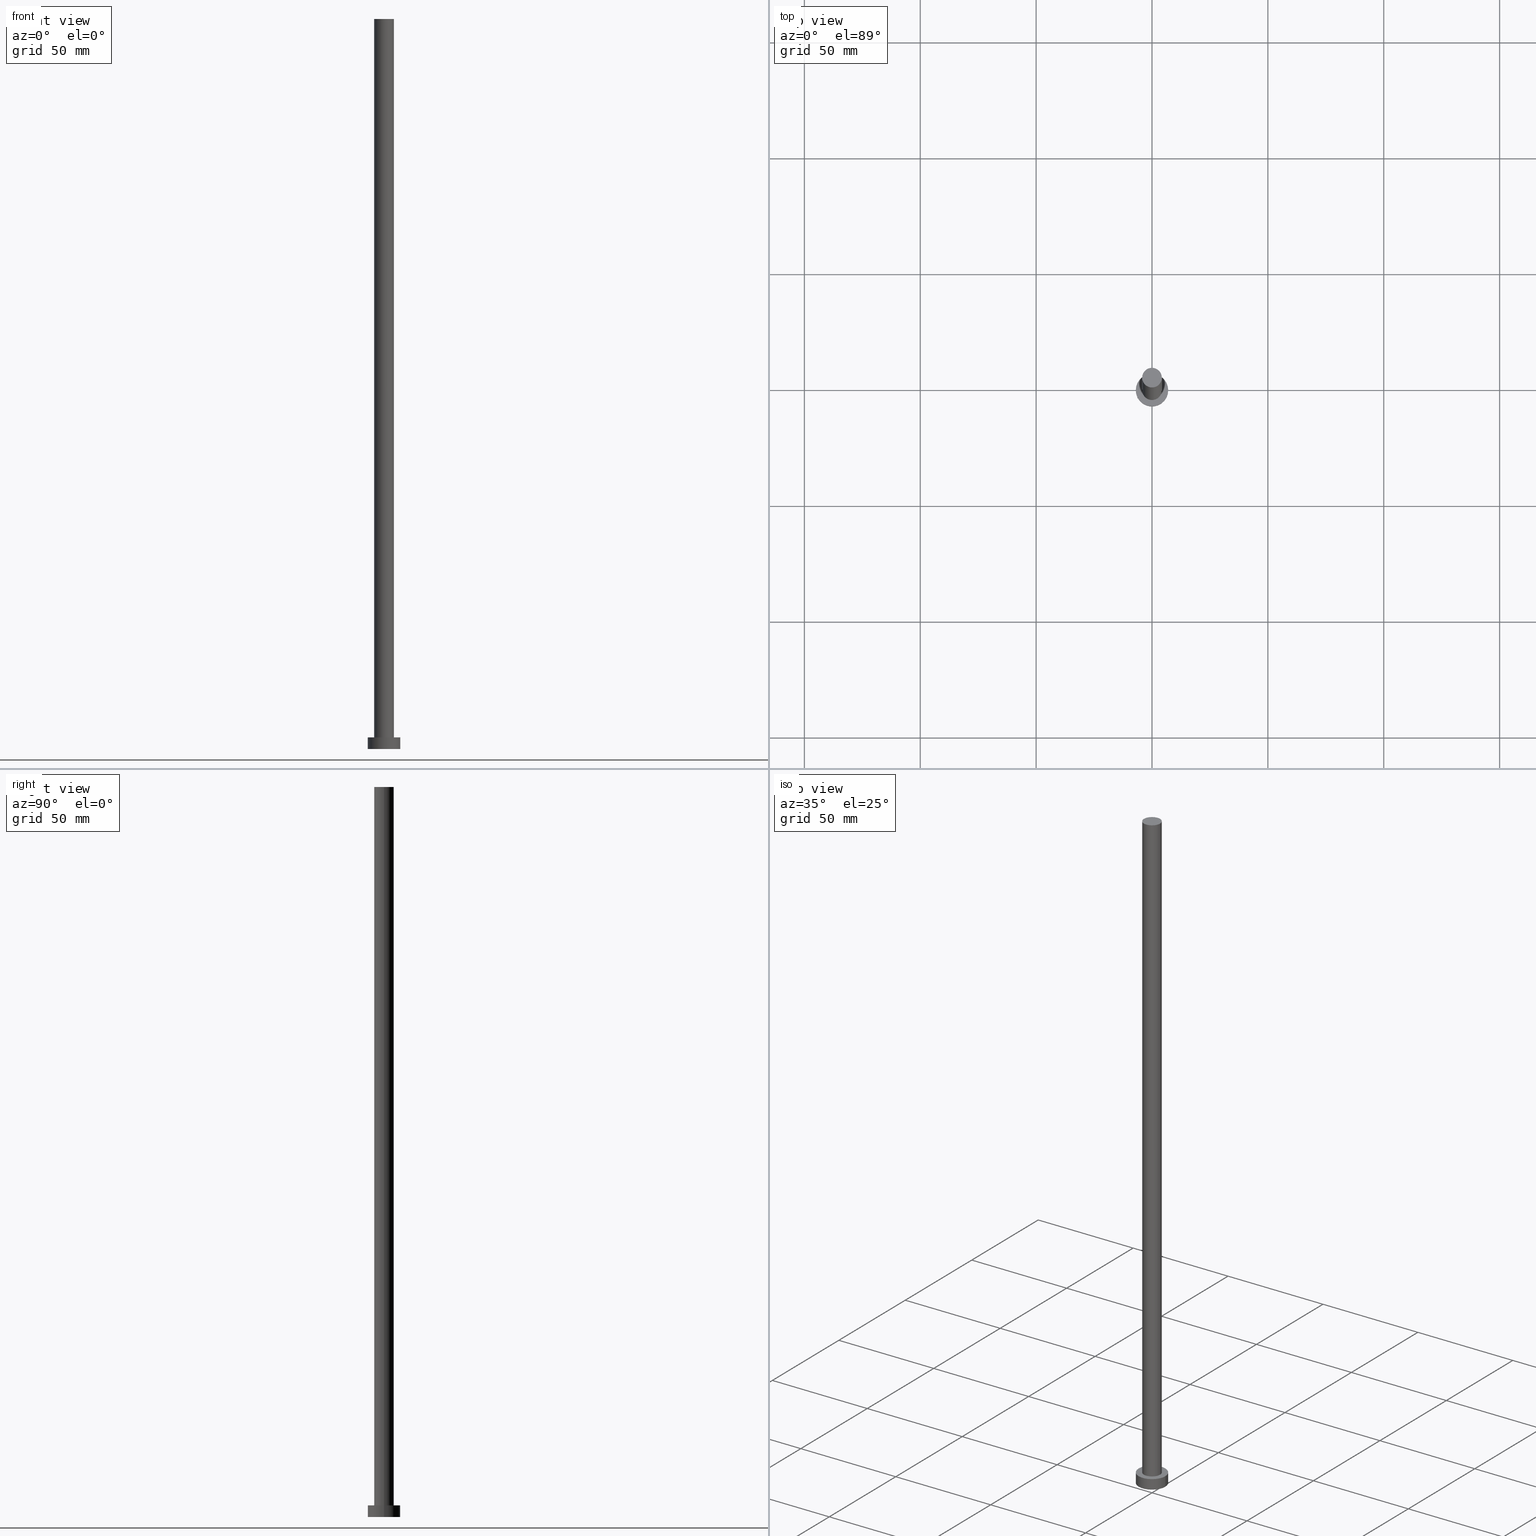
[diagram: canonical four-view strip — front | top / right | iso, engineering-drawing reading convention]
A machine part, canonical four-view strip (front | top / right | iso — engineering-drawing reading convention). The complete STEP part file that produces these views, byte-faithful:
ISO-10303-21;
HEADER;
FILE_DESCRIPTION (( 'STEP AP203' ),
    '1' );
FILE_NAME ('9669.STEP',
    '2023-02-12T11:37:46',
    ( '' ),
    ( '' ),
    'SwSTEP 2.0',
    'SolidWorks 2019',
    '' );
FILE_SCHEMA (( 'CONFIG_CONTROL_DESIGN' ));
ENDSEC;

DATA;
#1 = PRODUCT_RELATED_PRODUCT_CATEGORY ( 'detail', '', ( #59 ) ) ;
#2 = CC_DESIGN_APPROVAL ( #238, ( #102 ) ) ;
#3 = COORDINATED_UNIVERSAL_TIME_OFFSET ( 1, 0, .AHEAD. ) ;
#4 = EDGE_CURVE ( 'NONE', #224, #72, #190, .T. ) ;
#5 = AXIS2_PLACEMENT_3D ( 'NONE', #76, #21, #201 ) ;
#6 = PRODUCT_DEFINITION_FORMATION_WITH_SPECIFIED_SOURCE ( 'LIBOVOLN�', '', #59, .NOT_KNOWN. ) ;
#7 = ORIENTED_EDGE ( 'NONE', *, *, #29, .T. ) ;
#8 = ORIENTED_EDGE ( 'NONE', *, *, #114, .T. ) ;
#9 = FACE_OUTER_BOUND ( 'NONE', #215, .T. ) ;
#10 = EDGE_CURVE ( 'NONE', #246, #226, #250, .T. ) ;
#11 = ORIENTED_EDGE ( 'NONE', *, *, #10, .F. ) ;
#12 = CARTESIAN_POINT ( 'NONE',  ( 0.000000000000000000, 0.000000000000000000, 5.000000000000000000 ) ) ;
#13 = CC_DESIGN_PERSON_AND_ORGANIZATION_ASSIGNMENT ( #239, #97, ( #6 ) ) ;
#14 = CARTESIAN_POINT ( 'NONE',  ( 0.000000000000000000, 0.000000000000000000, 315.0000000000000000 ) ) ;
#15 = ORIENTED_EDGE ( 'NONE', *, *, #241, .T. ) ;
#16 = AXIS2_PLACEMENT_3D ( 'NONE', #166, #227, #112 ) ;
#17 = CIRCLE ( 'NONE', #120, 7.000000000000000000 ) ;
#18 = FACE_OUTER_BOUND ( 'NONE', #213, .T. ) ;
#19 = COORDINATED_UNIVERSAL_TIME_OFFSET ( 1, 0, .AHEAD. ) ;
#20 = DIRECTION ( 'NONE',  ( 0.000000000000000000, 0.000000000000000000, 1.000000000000000000 ) ) ;
#21 = DIRECTION ( 'NONE',  ( 0.000000000000000000, 0.000000000000000000, 1.000000000000000000 ) ) ;
#22 = PERSON_AND_ORGANIZATION ( #189, #81 ) ;
#23 = DATE_AND_TIME ( #24, #253 ) ;
#24 = CALENDAR_DATE ( 2023, 12, 2 ) ;
#25 = PERSON_AND_ORGANIZATION ( #189, #81 ) ;
#26 = CARTESIAN_POINT ( 'NONE',  ( 7.000000000000000000, 8.572527594031473190E-16, 0.000000000000000000 ) ) ;
#27 = DATE_AND_TIME ( #185, #142 ) ;
#28 = PERSON_AND_ORGANIZATION_ROLE ( 'creator' ) ;
#29 = EDGE_CURVE ( 'NONE', #75, #72, #134, .T. ) ;
#30 = ORIENTED_EDGE ( 'NONE', *, *, #167, .F. ) ;
#31 =( NAMED_UNIT ( * ) PLANE_ANGLE_UNIT ( ) SI_UNIT ( $, .RADIAN. ) );
#32 = ORIENTED_EDGE ( 'NONE', *, *, #29, .F. ) ;
#33 = FACE_OUTER_BOUND ( 'NONE', #87, .T. ) ;
#34 = SECURITY_CLASSIFICATION ( '', '', #184 ) ;
#35 = ADVANCED_FACE ( 'NONE', ( #193 ), #228, .T. ) ;
#36 = ORIENTED_EDGE ( 'NONE', *, *, #62, .F. ) ;
#37 = LINE ( 'NONE', #216, #71 ) ;
#38 = DIRECTION ( 'NONE',  ( -0.000000000000000000, -0.000000000000000000, -1.000000000000000000 ) ) ;
#39 = ORIENTED_EDGE ( 'NONE', *, *, #241, .F. ) ;
#40 = CARTESIAN_POINT ( 'NONE',  ( 0.000000000000000000, 0.000000000000000000, 0.000000000000000000 ) ) ;
#41 = APPROVAL_DATE_TIME ( #176, #238 ) ;
#42 = PERSON_AND_ORGANIZATION_ROLE ( 'design_owner' ) ;
#43 = CC_DESIGN_DATE_AND_TIME_ASSIGNMENT ( #27, #164, ( #34 ) ) ;
#44 = CARTESIAN_POINT ( 'NONE',  ( -7.000000000000000000, 0.000000000000000000, 5.000000000000000000 ) ) ;
#45 = PERSON_AND_ORGANIZATION ( #189, #81 ) ;
#46 = FACE_OUTER_BOUND ( 'NONE', #65, .T. ) ;
#47 = DIRECTION ( 'NONE',  ( 0.000000000000000000, 0.000000000000000000, 1.000000000000000000 ) ) ;
#48 = LOCAL_TIME ( 12, 37, 46.00000000000000000, #96 ) ;
#49 = EDGE_LOOP ( 'NONE', ( #101, #143 ) ) ;
#50 = AXIS2_PLACEMENT_3D ( 'NONE', #12, #53, #147 ) ;
#51 = CC_DESIGN_PERSON_AND_ORGANIZATION_ASSIGNMENT ( #22, #118, ( #102 ) ) ;
#52 = ORIENTED_EDGE ( 'NONE', *, *, #175, .T. ) ;
#53 = DIRECTION ( 'NONE',  ( 0.000000000000000000, 0.000000000000000000, 1.000000000000000000 ) ) ;
#54 = EDGE_CURVE ( 'NONE', #145, #106, #90, .T. ) ;
#55 = APPROVAL_PERSON_ORGANIZATION ( #196, #58, #80 ) ;
#56 = APPROVAL_STATUS ( 'not_yet_approved' ) ;
#57 = DIRECTION ( 'NONE',  ( 1.000000000000000000, 0.000000000000000000, 0.000000000000000000 ) ) ;
#58 = APPROVAL ( #151, 'NEUR�EN�' ) ;
#59 = PRODUCT ( '9669', '9669', '', ( #74 ) ) ;
#60 = CIRCLE ( 'NONE', #138, 4.250000000000000000 ) ;
#61 = CALENDAR_DATE ( 2023, 12, 2 ) ;
#62 = EDGE_CURVE ( 'NONE', #212, #75, #174, .T. ) ;
#63 = LOCAL_TIME ( 12, 37, 46.00000000000000000, #139 ) ;
#64 = ADVANCED_FACE ( 'NONE', ( #9 ), #85, .F. ) ;
#65 = EDGE_LOOP ( 'NONE', ( #84, #220, #186, #209 ) ) ;
#66 = ORIENTED_EDGE ( 'NONE', *, *, #203, .F. ) ;
#67 = ADVANCED_BREP_SHAPE_REPRESENTATION ( '9669', ( #162, #192 ), #89 ) ;
#68 = DESIGN_CONTEXT ( 'detailed design', #240, 'design' ) ;
#69 = DIRECTION ( 'NONE',  ( -1.000000000000000000, 0.000000000000000000, 0.000000000000000000 ) ) ;
#70 = DIRECTION ( 'NONE',  ( 1.000000000000000000, 0.000000000000000000, -0.000000000000000000 ) ) ;
#71 = VECTOR ( 'NONE', #229, 1000.000000000000000 ) ;
#72 = VERTEX_POINT ( 'NONE', #26 ) ;
#73 = DIRECTION ( 'NONE',  ( 1.000000000000000000, 0.000000000000000000, -0.000000000000000000 ) ) ;
#74 = MECHANICAL_CONTEXT ( 'NONE', #82, 'mechanical' ) ;
#75 = VERTEX_POINT ( 'NONE', #242 ) ;
#76 = CARTESIAN_POINT ( 'NONE',  ( 0.000000000000000000, 0.000000000000000000, 5.000000000000000000 ) ) ;
#77 = AXIS2_PLACEMENT_3D ( 'NONE', #178, #180, #202 ) ;
#78 = EDGE_CURVE ( 'NONE', #106, #145, #60, .T. ) ;
#79 = ORIENTED_EDGE ( 'NONE', *, *, #78, .F. ) ;
#80 = APPROVAL_ROLE ( '' ) ;
#81 = ORGANIZATION ( 'NEUR�EN�', 'NEUR�EN�', '' ) ;
#82 = APPLICATION_CONTEXT ( 'configuration controlled 3d designs of mechanical parts and assemblies' ) ;
#83 = DIRECTION ( 'NONE',  ( 0.000000000000000000, 0.000000000000000000, 1.000000000000000000 ) ) ;
#84 = ORIENTED_EDGE ( 'NONE', *, *, #54, .F. ) ;
#85 = PLANE ( 'NONE',  #104 ) ;
#86 = CC_DESIGN_PERSON_AND_ORGANIZATION_ASSIGNMENT ( #25, #183, ( #34 ) ) ;
#87 = EDGE_LOOP ( 'NONE', ( #30, #79, #171, #15 ) ) ;
#88 = DIRECTION ( 'NONE',  ( 0.000000000000000000, 0.000000000000000000, 1.000000000000000000 ) ) ;
#89 =( GEOMETRIC_REPRESENTATION_CONTEXT ( 3 ) GLOBAL_UNCERTAINTY_ASSIGNED_CONTEXT ( ( #244 ) ) GLOBAL_UNIT_ASSIGNED_CONTEXT ( ( #211, #31, #231 ) ) REPRESENTATION_CONTEXT ( 'NONE', 'WORKASPACE' ) );
#90 = CIRCLE ( 'NONE', #109, 4.250000000000000000 ) ;
#91 = ORIENTED_EDGE ( 'NONE', *, *, #4, .F. ) ;
#92 = CARTESIAN_POINT ( 'NONE',  ( -4.250000000000000000, 0.000000000000000000, 315.0000000000000000 ) ) ;
#93 = ADVANCED_FACE ( 'NONE', ( #18 ), #172, .T. ) ;
#94 = CLOSED_SHELL ( 'NONE', ( #222, #93, #35, #99, #64, #127, #153 ) ) ;
#95 = CALENDAR_DATE ( 2023, 12, 2 ) ;
#96 = COORDINATED_UNIVERSAL_TIME_OFFSET ( 1, 0, .AHEAD. ) ;
#97 = PERSON_AND_ORGANIZATION_ROLE ( 'design_supplier' ) ;
#98 = DIRECTION ( 'NONE',  ( -1.000000000000000000, 0.000000000000000000, 0.000000000000000000 ) ) ;
#99 = ADVANCED_FACE ( 'NONE', ( #148, #232 ), #129, .T. ) ;
#100 = CARTESIAN_POINT ( 'NONE',  ( 0.000000000000000000, 0.000000000000000000, 5.000000000000000000 ) ) ;
#101 = ORIENTED_EDGE ( 'NONE', *, *, #78, .T. ) ;
#102 = PRODUCT_DEFINITION ( 'NEZN�M�', '', #6, #68 ) ;
#103 = CIRCLE ( 'NONE', #137, 4.250000000000000000 ) ;
#104 = AXIS2_PLACEMENT_3D ( 'NONE', #163, #161, #140 ) ;
#105 = CARTESIAN_POINT ( 'NONE',  ( 4.250000000000000000, 5.204748896376250699E-16, 5.000000000000000000 ) ) ;
#106 = VERTEX_POINT ( 'NONE', #92 ) ;
#107 = CC_DESIGN_DATE_AND_TIME_ASSIGNMENT ( #200, #236, ( #102 ) ) ;
#108 = DIRECTION ( 'NONE',  ( 0.000000000000000000, 0.000000000000000000, 1.000000000000000000 ) ) ;
#109 = AXIS2_PLACEMENT_3D ( 'NONE', #136, #47, #223 ) ;
#110 = EDGE_LOOP ( 'NONE', ( #91, #66, #128, #7 ) ) ;
#111 = DIRECTION ( 'NONE',  ( 1.000000000000000000, 0.000000000000000000, 0.000000000000000000 ) ) ;
#112 = DIRECTION ( 'NONE',  ( -1.000000000000000000, 0.000000000000000000, 0.000000000000000000 ) ) ;
#113 = FACE_OUTER_BOUND ( 'NONE', #49, .T. ) ;
#114 = EDGE_CURVE ( 'NONE', #224, #212, #157, .T. ) ;
#115 = DIRECTION ( 'NONE',  ( 1.000000000000000000, 0.000000000000000000, 0.000000000000000000 ) ) ;
#116 = APPROVAL_PERSON_ORGANIZATION ( #123, #238, #219 ) ;
#117 = DIRECTION ( 'NONE',  ( 0.000000000000000000, 0.000000000000000000, 1.000000000000000000 ) ) ;
#118 = PERSON_AND_ORGANIZATION_ROLE ( 'creator' ) ;
#119 = PRODUCT_DEFINITION_SHAPE ( 'NONE', 'NONE',  #102 ) ;
#120 = AXIS2_PLACEMENT_3D ( 'NONE', #40, #117, #199 ) ;
#121 = DIRECTION ( 'NONE',  ( -0.000000000000000000, -0.000000000000000000, -1.000000000000000000 ) ) ;
#122 = ORIENTED_EDGE ( 'NONE', *, *, #203, .T. ) ;
#123 = PERSON_AND_ORGANIZATION ( #189, #81 ) ;
#124 = APPROVAL ( #205, 'NEUR�EN�' ) ;
#125 = CARTESIAN_POINT ( 'NONE',  ( 7.000000000000000000, 8.572527594031473190E-16, 5.000000000000000000 ) ) ;
#126 = AXIS2_PLACEMENT_3D ( 'NONE', #191, #248, #70 ) ;
#127 = ADVANCED_FACE ( 'NONE', ( #33 ), #230, .T. ) ;
#128 = ORIENTED_EDGE ( 'NONE', *, *, #62, .T. ) ;
#129 = PLANE ( 'NONE',  #126 ) ;
#130 = DIRECTION ( 'NONE',  ( 0.000000000000000000, 0.000000000000000000, 1.000000000000000000 ) ) ;
#131 = EDGE_CURVE ( 'NONE', #106, #226, #37, .T. ) ;
#132 = LINE ( 'NONE', #149, #237 ) ;
#133 = AXIS2_PLACEMENT_3D ( 'NONE', #14, #195, #73 ) ;
#134 = CIRCLE ( 'NONE', #159, 7.000000000000000000 ) ;
#135 = CARTESIAN_POINT ( 'NONE',  ( 0.000000000000000000, 0.000000000000000000, 0.000000000000000000 ) ) ;
#136 = CARTESIAN_POINT ( 'NONE',  ( 0.000000000000000000, 0.000000000000000000, 315.0000000000000000 ) ) ;
#137 = AXIS2_PLACEMENT_3D ( 'NONE', #100, #83, #182 ) ;
#138 = AXIS2_PLACEMENT_3D ( 'NONE', #144, #88, #115 ) ;
#139 = COORDINATED_UNIVERSAL_TIME_OFFSET ( 1, 0, .AHEAD. ) ;
#140 = DIRECTION ( 'NONE',  ( 1.000000000000000000, 0.000000000000000000, -0.000000000000000000 ) ) ;
#141 = LOCAL_TIME ( 12, 37, 46.00000000000000000, #254 ) ;
#142 = LOCAL_TIME ( 12, 37, 46.00000000000000000, #3 ) ;
#143 = ORIENTED_EDGE ( 'NONE', *, *, #54, .T. ) ;
#144 = CARTESIAN_POINT ( 'NONE',  ( 0.000000000000000000, 0.000000000000000000, 315.0000000000000000 ) ) ;
#145 = VERTEX_POINT ( 'NONE', #146 ) ;
#146 = CARTESIAN_POINT ( 'NONE',  ( 4.250000000000000000, 5.204748896376250699E-16, 315.0000000000000000 ) ) ;
#147 = DIRECTION ( 'NONE',  ( 1.000000000000000000, 0.000000000000000000, 0.000000000000000000 ) ) ;
#148 = FACE_BOUND ( 'NONE', #188, .T. ) ;
#149 = CARTESIAN_POINT ( 'NONE',  ( 4.250000000000000000, 5.204748896376250699E-16, 315.0000000000000000 ) ) ;
#150 = CYLINDRICAL_SURFACE ( 'NONE', #249, 4.250000000000000000 ) ;
#151 = APPROVAL_STATUS ( 'not_yet_approved' ) ;
#152 = CARTESIAN_POINT ( 'NONE',  ( 7.000000000000000000, 8.572527594031473190E-16, 5.000000000000000000 ) ) ;
#153 = ADVANCED_FACE ( 'NONE', ( #113 ), #251, .T. ) ;
#154 = ORIENTED_EDGE ( 'NONE', *, *, #175, .F. ) ;
#155 = APPLICATION_PROTOCOL_DEFINITION ( 'international standard', 'config_control_design', 1994, #240 ) ;
#156 = CIRCLE ( 'NONE', #5, 7.000000000000000000 ) ;
#157 = CIRCLE ( 'NONE', #50, 7.000000000000000000 ) ;
#158 = APPROVAL_ROLE ( '' ) ;
#159 = AXIS2_PLACEMENT_3D ( 'NONE', #170, #108, #111 ) ;
#160 = EDGE_LOOP ( 'NONE', ( #122, #8 ) ) ;
#161 = DIRECTION ( 'NONE',  ( 0.000000000000000000, 0.000000000000000000, 1.000000000000000000 ) ) ;
#162 = MANIFOLD_SOLID_BREP ( 'P�idat vysunut�m3', #94 ) ;
#163 = CARTESIAN_POINT ( 'NONE',  ( 0.000000000000000000, 0.000000000000000000, 0.000000000000000000 ) ) ;
#164 = DATE_TIME_ROLE ( 'classification_date' ) ;
#165 = CC_DESIGN_APPROVAL ( #58, ( #6 ) ) ;
#166 = CARTESIAN_POINT ( 'NONE',  ( 0.000000000000000000, 0.000000000000000000, 5.000000000000000000 ) ) ;
#167 = EDGE_CURVE ( 'NONE', #145, #246, #132, .T. ) ;
#168 = SHAPE_DEFINITION_REPRESENTATION ( #119, #67 ) ;
#169 = DIRECTION ( 'NONE',  ( -0.000000000000000000, -0.000000000000000000, -1.000000000000000000 ) ) ;
#170 = CARTESIAN_POINT ( 'NONE',  ( 0.000000000000000000, 0.000000000000000000, 0.000000000000000000 ) ) ;
#171 = ORIENTED_EDGE ( 'NONE', *, *, #131, .T. ) ;
#172 = CYLINDRICAL_SURFACE ( 'NONE', #16, 7.000000000000000000 ) ;
#173 = DIRECTION ( 'NONE',  ( 1.000000000000000000, 0.000000000000000000, 0.000000000000000000 ) ) ;
#174 = LINE ( 'NONE', #44, #187 ) ;
#175 = EDGE_CURVE ( 'NONE', #72, #75, #17, .T. ) ;
#176 = DATE_AND_TIME ( #61, #63 ) ;
#177 = CALENDAR_DATE ( 2023, 12, 2 ) ;
#178 = CARTESIAN_POINT ( 'NONE',  ( 0.000000000000000000, 0.000000000000000000, 5.000000000000000000 ) ) ;
#179 = APPROVAL_DATE_TIME ( #206, #124 ) ;
#180 = DIRECTION ( 'NONE',  ( -0.000000000000000000, -0.000000000000000000, -1.000000000000000000 ) ) ;
#181 = PERSON_AND_ORGANIZATION ( #189, #81 ) ;
#182 = DIRECTION ( 'NONE',  ( 1.000000000000000000, 0.000000000000000000, 0.000000000000000000 ) ) ;
#183 = PERSON_AND_ORGANIZATION_ROLE ( 'classification_officer' ) ;
#184 = SECURITY_CLASSIFICATION_LEVEL ( 'unclassified' ) ;
#185 = CALENDAR_DATE ( 2023, 12, 2 ) ;
#186 = ORIENTED_EDGE ( 'NONE', *, *, #10, .T. ) ;
#187 = VECTOR ( 'NONE', #121, 1000.000000000000000 ) ;
#188 = EDGE_LOOP ( 'NONE', ( #39, #11 ) ) ;
#189 = PERSON ( 'NEUR�EN�', 'NEUR�EN�', 'NEUR�EN�', ('NEUR�EN�'), ('NEUR�EN�'), ('NEUR�EN�') ) ;
#190 = LINE ( 'NONE', #152, #210 ) ;
#191 = CARTESIAN_POINT ( 'NONE',  ( 0.000000000000000000, 0.000000000000000000, 5.000000000000000000 ) ) ;
#192 = AXIS2_PLACEMENT_3D ( 'NONE', #135, #20, #57 ) ;
#193 = FACE_OUTER_BOUND ( 'NONE', #110, .T. ) ;
#194 = CC_DESIGN_SECURITY_CLASSIFICATION ( #34, ( #6 ) ) ;
#195 = DIRECTION ( 'NONE',  ( 0.000000000000000000, 0.000000000000000000, 1.000000000000000000 ) ) ;
#196 = PERSON_AND_ORGANIZATION ( #189, #81 ) ;
#197 = CC_DESIGN_PERSON_AND_ORGANIZATION_ASSIGNMENT ( #45, #42, ( #59 ) ) ;
#198 = CARTESIAN_POINT ( 'NONE',  ( 0.000000000000000000, 0.000000000000000000, 5.000000000000000000 ) ) ;
#199 = DIRECTION ( 'NONE',  ( 1.000000000000000000, 0.000000000000000000, 0.000000000000000000 ) ) ;
#200 = DATE_AND_TIME ( #95, #141 ) ;
#201 = DIRECTION ( 'NONE',  ( 1.000000000000000000, 0.000000000000000000, 0.000000000000000000 ) ) ;
#202 = DIRECTION ( 'NONE',  ( -1.000000000000000000, 0.000000000000000000, 0.000000000000000000 ) ) ;
#203 = EDGE_CURVE ( 'NONE', #212, #224, #156, .T. ) ;
#204 = DIRECTION ( 'NONE',  ( -0.000000000000000000, -0.000000000000000000, -1.000000000000000000 ) ) ;
#205 = APPROVAL_STATUS ( 'not_yet_approved' ) ;
#206 = DATE_AND_TIME ( #177, #48 ) ;
#207 = CARTESIAN_POINT ( 'NONE',  ( -4.250000000000000000, 0.000000000000000000, 5.000000000000000000 ) ) ;
#208 = APPROVAL_DATE_TIME ( #23, #58 ) ;
#209 = ORIENTED_EDGE ( 'NONE', *, *, #131, .F. ) ;
#210 = VECTOR ( 'NONE', #169, 1000.000000000000000 ) ;
#211 =( LENGTH_UNIT ( ) NAMED_UNIT ( * ) SI_UNIT ( .MILLI., .METRE. ) );
#212 = VERTEX_POINT ( 'NONE', #255 ) ;
#213 = EDGE_LOOP ( 'NONE', ( #252, #233, #52, #36 ) ) ;
#214 = APPLICATION_PROTOCOL_DEFINITION ( 'international standard', 'config_control_design', 1994, #82 ) ;
#215 = EDGE_LOOP ( 'NONE', ( #32, #154 ) ) ;
#216 = CARTESIAN_POINT ( 'NONE',  ( -4.250000000000000000, 0.000000000000000000, 315.0000000000000000 ) ) ;
#217 = AXIS2_PLACEMENT_3D ( 'NONE', #247, #38, #69 ) ;
#218 = AXIS2_PLACEMENT_3D ( 'NONE', #198, #130, #173 ) ;
#219 = APPROVAL_ROLE ( '' ) ;
#220 = ORIENTED_EDGE ( 'NONE', *, *, #167, .T. ) ;
#221 = CARTESIAN_POINT ( 'NONE',  ( 0.000000000000000000, 0.000000000000000000, 315.0000000000000000 ) ) ;
#222 = ADVANCED_FACE ( 'NONE', ( #46 ), #150, .T. ) ;
#223 = DIRECTION ( 'NONE',  ( 1.000000000000000000, 0.000000000000000000, 0.000000000000000000 ) ) ;
#224 = VERTEX_POINT ( 'NONE', #125 ) ;
#225 = CC_DESIGN_PERSON_AND_ORGANIZATION_ASSIGNMENT ( #181, #28, ( #6 ) ) ;
#226 = VERTEX_POINT ( 'NONE', #207 ) ;
#227 = DIRECTION ( 'NONE',  ( -0.000000000000000000, -0.000000000000000000, -1.000000000000000000 ) ) ;
#228 = CYLINDRICAL_SURFACE ( 'NONE', #77, 7.000000000000000000 ) ;
#229 = DIRECTION ( 'NONE',  ( -0.000000000000000000, -0.000000000000000000, -1.000000000000000000 ) ) ;
#230 = CYLINDRICAL_SURFACE ( 'NONE', #217, 4.250000000000000000 ) ;
#231 =( NAMED_UNIT ( * ) SI_UNIT ( $, .STERADIAN. ) SOLID_ANGLE_UNIT ( ) );
#232 = FACE_OUTER_BOUND ( 'NONE', #160, .T. ) ;
#233 = ORIENTED_EDGE ( 'NONE', *, *, #4, .T. ) ;
#234 = DIRECTION ( 'NONE',  ( -0.000000000000000000, -0.000000000000000000, -1.000000000000000000 ) ) ;
#235 = CC_DESIGN_APPROVAL ( #124, ( #34 ) ) ;
#236 = DATE_TIME_ROLE ( 'creation_date' ) ;
#237 = VECTOR ( 'NONE', #234, 1000.000000000000000 ) ;
#238 = APPROVAL ( #56, 'NEUR�EN�' ) ;
#239 = PERSON_AND_ORGANIZATION ( #189, #81 ) ;
#240 = APPLICATION_CONTEXT ( 'configuration controlled 3d designs of mechanical parts and assemblies' ) ;
#241 = EDGE_CURVE ( 'NONE', #226, #246, #103, .T. ) ;
#242 = CARTESIAN_POINT ( 'NONE',  ( -7.000000000000000000, 0.000000000000000000, 0.000000000000000000 ) ) ;
#243 = PERSON_AND_ORGANIZATION ( #189, #81 ) ;
#244 = UNCERTAINTY_MEASURE_WITH_UNIT (LENGTH_MEASURE( 1.000000000000000082E-05 ), #211, 'distance_accuracy_value', 'NONE');
#245 = APPROVAL_PERSON_ORGANIZATION ( #243, #124, #158 ) ;
#246 = VERTEX_POINT ( 'NONE', #105 ) ;
#247 = CARTESIAN_POINT ( 'NONE',  ( 0.000000000000000000, 0.000000000000000000, 315.0000000000000000 ) ) ;
#248 = DIRECTION ( 'NONE',  ( 0.000000000000000000, 0.000000000000000000, 1.000000000000000000 ) ) ;
#249 = AXIS2_PLACEMENT_3D ( 'NONE', #221, #204, #98 ) ;
#250 = CIRCLE ( 'NONE', #218, 4.250000000000000000 ) ;
#251 = PLANE ( 'NONE',  #133 ) ;
#252 = ORIENTED_EDGE ( 'NONE', *, *, #114, .F. ) ;
#253 = LOCAL_TIME ( 12, 37, 46.00000000000000000, #19 ) ;
#254 = COORDINATED_UNIVERSAL_TIME_OFFSET ( 1, 0, .AHEAD. ) ;
#255 = CARTESIAN_POINT ( 'NONE',  ( -7.000000000000000000, 0.000000000000000000, 5.000000000000000000 ) ) ;
ENDSEC;
END-ISO-10303-21;
